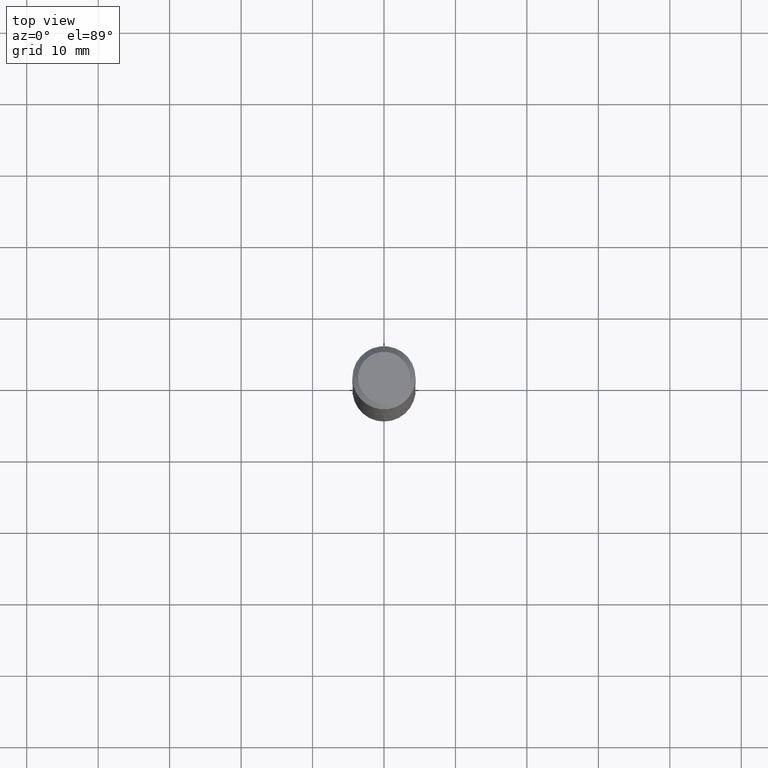
[diagram: clean part render]
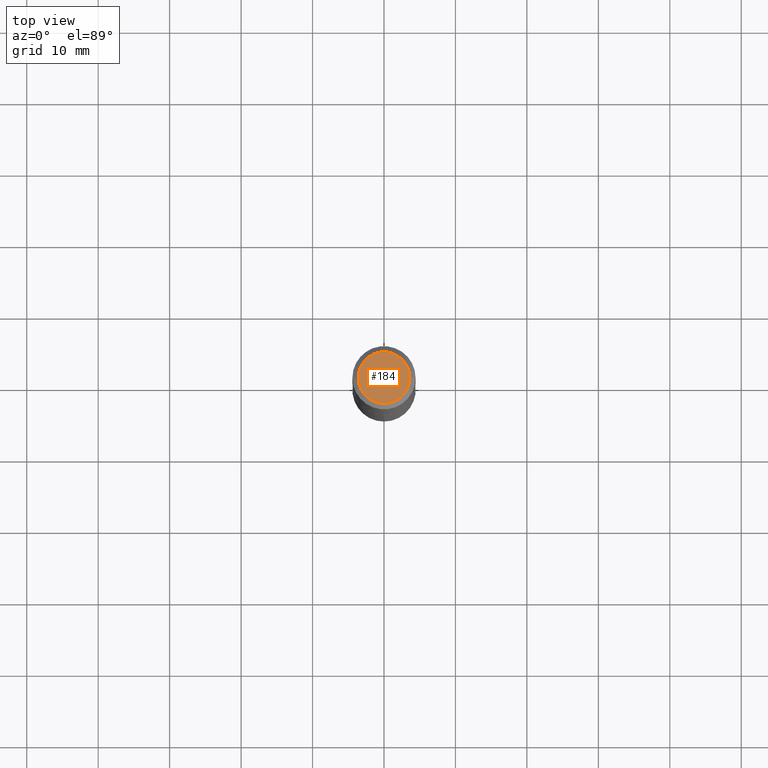
[diagram: same view with one face highlighted and labeled with its STEP entity id]
A machine part, top view. The second image highlights one B-rep face of the part: STEP entity #184.
In plain terms, the highlighted planar face has unit normal (0, -0, -1).
Its self-contained STEP definition (entity closure, byte-faithful):
#20 = DIRECTION ( 'NONE',  ( -2.445468806185136597E-29, 3.491481338843145583E-15, 1.000000000000000000 ) ) ;
#21 = AXIS2_PLACEMENT_3D ( 'NONE', #55, #91, #160 ) ;
#43 = ORIENTED_EDGE ( 'NONE', *, *, #280, .T. ) ;
#48 = CARTESIAN_POINT ( 'NONE',  ( 0.1427499999999999603, -1.141085766316490663E-15, 5.510910596237823534E-19 ) ) ;
#51 = AXIS2_PLACEMENT_3D ( 'NONE', #182, #20, #124 ) ;
#55 = CARTESIAN_POINT ( 'NONE',  ( -6.738379978295965082E-48, 9.620620753268161422E-34, 2.755455298081536689E-19 ) ) ;
#67 = DIRECTION ( 'NONE',  ( -2.445468806185136597E-29, 3.491481338843145583E-15, 1.000000000000000000 ) ) ;
#74 = CIRCLE ( 'NONE', #51, 0.1427499999999999603 ) ;
#91 = DIRECTION ( 'NONE',  ( 2.438088387897960049E-29, -3.491481338843145188E-15, -1.000000000000000000 ) ) ;
#93 = DIRECTION ( 'NONE',  ( 1.000000000000000000, -6.982962677686265922E-15, 4.876191187177803928E-29 ) ) ;
#124 = DIRECTION ( 'NONE',  ( 1.000000000000000000, -6.982962677686265922E-15, 4.876191187177803928E-29 ) ) ;
#130 = PLANE ( 'NONE',  #21 ) ;
#157 = CIRCLE ( 'NONE', #206, 0.1427499999999999603 ) ;
#160 = DIRECTION ( 'NONE',  ( -1.000000000000000000, 6.982962677686265922E-15, -4.876176775795935793E-29 ) ) ;
#166 = CARTESIAN_POINT ( 'NONE',  ( -1.347675995659193016E-47, 1.924124150653632284E-33, 5.510910596163073378E-19 ) ) ;
#182 = CARTESIAN_POINT ( 'NONE',  ( -1.347675995659193016E-47, 1.924124150653632284E-33, 5.510910596163073378E-19 ) ) ;
#184 = ADVANCED_FACE ( 'NONE', ( #245 ), #130, .F. ) ;
#194 = EDGE_LOOP ( 'NONE', ( #43, #376 ) ) ;
#206 = AXIS2_PLACEMENT_3D ( 'NONE', #166, #67, #93 ) ;
#241 = EDGE_CURVE ( 'NONE', #372, #265, #74, .T. ) ;
#243 = CARTESIAN_POINT ( 'NONE',  ( -0.1427499999999999603, 1.051372318159137798E-15, 5.510910596091454784E-19 ) ) ;
#245 = FACE_OUTER_BOUND ( 'NONE', #194, .T. ) ;
#265 = VERTEX_POINT ( 'NONE', #243 ) ;
#280 = EDGE_CURVE ( 'NONE', #265, #372, #157, .T. ) ;
#372 = VERTEX_POINT ( 'NONE', #48 ) ;
#376 = ORIENTED_EDGE ( 'NONE', *, *, #241, .T. ) ;